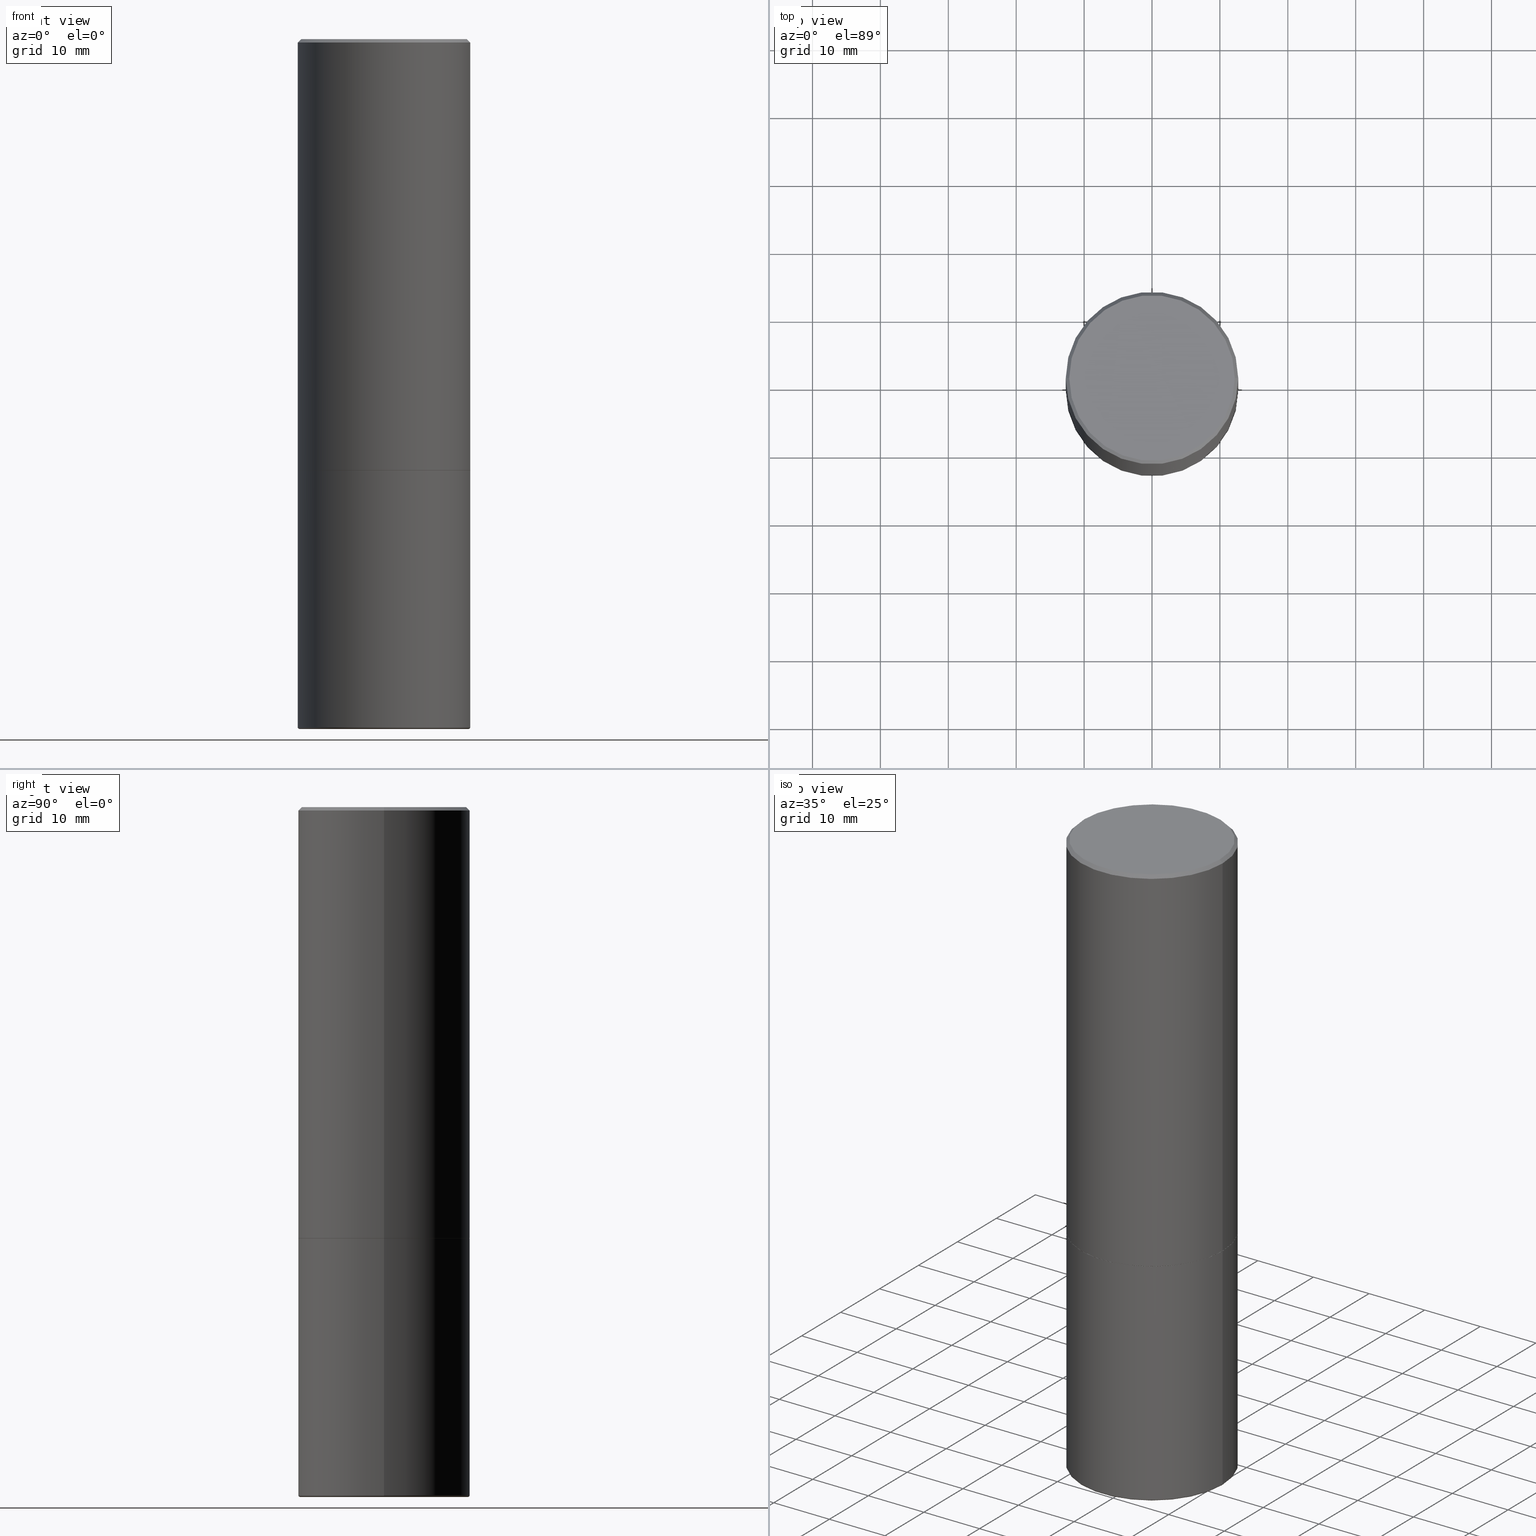
[diagram: canonical four-view strip — front | top / right | iso, engineering-drawing reading convention]
A machine part, canonical four-view strip (front | top / right | iso — engineering-drawing reading convention). The complete STEP part file that produces these views, byte-faithful:
ISO-10303-21;
HEADER;
FILE_DESCRIPTION (( 'STEP AP203' ),
    '1' );
FILE_NAME ('38879.STEP',
    '2024-03-03T19:05:13',
    ( '' ),
    ( '' ),
    'SwSTEP 2.0',
    'SolidWorks 2023',
    '' );
FILE_SCHEMA (( 'CONFIG_CONTROL_DESIGN' ));
ENDSEC;

DATA;
#1 = CARTESIAN_POINT ( 'NONE',  ( -0.5000000000000000000, 3.552713678800500929E-15, -2.459467545127452891E-29 ) ) ;
#2 = CARTESIAN_POINT ( 'NONE',  ( 0.5000000000000000000, -1.742249188082728404E-14, -3.989999999999999769 ) ) ;
#3 = ORIENTED_EDGE ( 'NONE', *, *, #329, .F. ) ;
#4 = CARTESIAN_POINT ( 'NONE',  ( -4.279790798774401163E-45, 6.110406998559833931E-31, 1.750090120941168532E-16 ) ) ;
#5 = LINE ( 'NONE', #1, #148 ) ;
#6 = CARTESIAN_POINT ( 'NONE',  ( 6.113672015462842613E-29, -8.728703347107864943E-15, -2.500000000000000000 ) ) ;
#7 = DIRECTION ( 'NONE',  ( -2.445468806185136597E-29, 3.491481338843145583E-15, 1.000000000000000000 ) ) ;
#8 = EDGE_CURVE ( 'NONE', #214, #286, #413, .T. ) ;
#9 = DIRECTION ( 'NONE',  ( 2.438088387897960049E-29, -3.491481338843145188E-15, -1.000000000000000000 ) ) ;
#10 = CONICAL_SURFACE ( 'NONE', #377, 0.5000000000000001110, 0.7853981633974445042 ) ;
#11 = DIMENSIONAL_EXPONENTS ( 1.000000000000000000, 0.000000000000000000, 0.000000000000000000, 0.000000000000000000, 0.000000000000000000, 0.000000000000000000, 0.000000000000000000 ) ;
#12 = PLANE ( 'NONE',  #216 ) ;
#13 = CALENDAR_DATE ( 2024, 3, 3 ) ;
#14 = ORIENTED_EDGE ( 'NONE', *, *, #225, .F. ) ;
#15 = ORIENTED_EDGE ( 'NONE', *, *, #363, .T. ) ;
#16 = ADVANCED_FACE ( 'NONE', ( #122 ), #259, .T. ) ;
#17 = LINE ( 'NONE', #213, #82 ) ;
#18 = CC_DESIGN_PERSON_AND_ORGANIZATION_ASSIGNMENT ( #46, #178, ( #142 ) ) ;
#19 = ORIENTED_EDGE ( 'NONE', *, *, #8, .T. ) ;
#20 = VERTEX_POINT ( 'NONE', #327 ) ;
#21 =( NAMED_UNIT ( * ) PLANE_ANGLE_UNIT ( ) SI_UNIT ( $, .RADIAN. ) );
#22 = AXIS2_PLACEMENT_3D ( 'NONE', #315, #117, #152 ) ;
#23 = SECURITY_CLASSIFICATION ( '', '', #87 ) ;
#24 = DIRECTION ( 'NONE',  ( -1.000000000000000000, 6.982962677686265922E-15, -4.876176775795935793E-29 ) ) ;
#25 = ORIENTED_EDGE ( 'NONE', *, *, #48, .F. ) ;
#26 = ORIENTED_EDGE ( 'NONE', *, *, #329, .T. ) ;
#27 = CARTESIAN_POINT ( 'NONE',  ( 0.5000000000000001110, -3.491481338843134539E-15, 2.438088387897968457E-29 ) ) ;
#28 = ORIENTED_EDGE ( 'NONE', *, *, #355, .T. ) ;
#29 = DIRECTION ( 'NONE',  ( 1.000000000000000000, -6.982962677686266711E-15, 4.876176775795935793E-29 ) ) ;
#30 = DIRECTION ( 'NONE',  ( -2.445468806185136597E-29, 3.491481338843145583E-15, 1.000000000000000000 ) ) ;
#31 = APPLICATION_CONTEXT ( 'configuration controlled 3d designs of mechanical parts and assemblies' ) ;
#32 = CIRCLE ( 'NONE', #352, 0.5000000000000001110 ) ;
#33 = EDGE_CURVE ( 'NONE', #343, #387, #111, .T. ) ;
#34 = CIRCLE ( 'NONE', #187, 0.5000000000000000000 ) ;
#35 = CARTESIAN_POINT ( 'NONE',  ( 0.5000000000000002220, -1.221669320461215845E-14, -2.499000000000000110 ) ) ;
#36 = DIRECTION ( 'NONE',  ( 2.445468806185136597E-29, -3.491481338843145583E-15, -1.000000000000000000 ) ) ;
#37 = CIRCLE ( 'NONE', #22, 0.4799999999999999267 ) ;
#38 = VECTOR ( 'NONE', #217, 39.37007874015748143 ) ;
#39 = ADVANCED_FACE ( 'NONE', ( #392 ), #399, .F. ) ;
#40 = VECTOR ( 'NONE', #237, 39.37007874015748854 ) ;
#41 = DIRECTION ( 'NONE',  ( 1.000000000000000000, -6.982962677686265922E-15, 0.000000000000000000 ) ) ;
#42 = DATE_TIME_ROLE ( 'creation_date' ) ;
#43 = EDGE_LOOP ( 'NONE', ( #176, #145, #26, #238 ) ) ;
#44 = CIRCLE ( 'NONE', #291, 0.5000000000000000000 ) ;
#45 =( GEOMETRIC_REPRESENTATION_CONTEXT ( 3 ) GLOBAL_UNCERTAINTY_ASSIGNED_CONTEXT ( ( #218 ) ) GLOBAL_UNIT_ASSIGNED_CONTEXT ( ( #164, #21, #154 ) ) REPRESENTATION_CONTEXT ( 'NONE', 'WORKASPACE' ) );
#46 = PERSON_AND_ORGANIZATION ( #62, #304 ) ;
#47 = ADVANCED_FACE ( 'NONE', ( #80 ), #72, .T. ) ;
#48 = EDGE_CURVE ( 'NONE', #387, #240, #110, .T. ) ;
#49 = CARTESIAN_POINT ( 'NONE',  ( 0.5000000000000000000, -3.491481338843133355E-15, 2.438088387897967896E-29 ) ) ;
#50 = CARTESIAN_POINT ( 'NONE',  ( -0.5000000000000002220, -8.448070674724393209E-16, -2.499000000000000110 ) ) ;
#51 = DIRECTION ( 'NONE',  ( -2.445468806185136597E-29, 3.491481338843145583E-15, 1.000000000000000000 ) ) ;
#52 = VERTEX_POINT ( 'NONE', #312 ) ;
#53 = MANIFOLD_SOLID_BREP ( 'Body-Move/Copy2[2]', #402 ) ;
#54 = ORIENTED_EDGE ( 'NONE', *, *, #33, .F. ) ;
#55 = AXIS2_PLACEMENT_3D ( 'NONE', #116, #254, #29 ) ;
#56 = ORIENTED_EDGE ( 'NONE', *, *, #295, .T. ) ;
#57 = PERSON_AND_ORGANIZATION ( #62, #304 ) ;
#58 = CYLINDRICAL_SURFACE ( 'NONE', #223, 0.5000000000000000000 ) ;
#59 = DIRECTION ( 'NONE',  ( 1.000000000000000000, -6.982962677686265922E-15, 0.000000000000000000 ) ) ;
#60 = ADVANCED_FACE ( 'NONE', ( #151 ), #407, .T. ) ;
#61 = VERTEX_POINT ( 'NONE', #371 ) ;
#62 = PERSON ( 'UNSPECIFIED', 'UNSPECIFIED', 'UNSPECIFIED', ('UNSPECIFIED'), ('UNSPECIFIED'), ('UNSPECIFIED') ) ;
#63 = ORIENTED_EDGE ( 'NONE', *, *, #123, .T. ) ;
#64 = DATE_AND_TIME ( #93, #354 ) ;
#65 = EDGE_CURVE ( 'NONE', #286, #214, #274, .T. ) ;
#66 = PERSON_AND_ORGANIZATION ( #62, #304 ) ;
#67 = CLOSED_SHELL ( 'NONE', ( #60, #269, #39, #68, #244, #191 ) ) ;
#68 = ADVANCED_FACE ( 'NONE', ( #344 ), #58, .T. ) ;
#69 = APPROVAL_ROLE ( '' ) ;
#70 = DIRECTION ( 'NONE',  ( 1.000000000000000000, -6.982962677686266711E-15, 4.876176775795935793E-29 ) ) ;
#71 = CARTESIAN_POINT ( 'NONE',  ( 9.757420536678694842E-29, -1.393101054198414910E-14, -3.989999999999999769 ) ) ;
#72 = CONICAL_SURFACE ( 'NONE', #376, 0.4989999999999999991, 0.7853981633976873100 ) ;
#73 = AXIS2_PLACEMENT_3D ( 'NONE', #228, #261, #251 ) ;
#74 = DIRECTION ( 'NONE',  ( -1.000000000000000000, 6.982962677686265922E-15, 0.000000000000000000 ) ) ;
#75 = CARTESIAN_POINT ( 'NONE',  ( 0.4989999999999999991, -1.221320172327331228E-14, -2.500000000000000000 ) ) ;
#76 = ORIENTED_EDGE ( 'NONE', *, *, #77, .F. ) ;
#77 = EDGE_CURVE ( 'NONE', #86, #61, #323, .T. ) ;
#78 = CYLINDRICAL_SURFACE ( 'NONE', #224, 0.5000000000000001110 ) ;
#79 = DIRECTION ( 'NONE',  ( 1.000000000000000000, -6.982962677686267499E-15, 4.876176775795935793E-29 ) ) ;
#80 = FACE_OUTER_BOUND ( 'NONE', #43, .T. ) ;
#81 = PERSON_AND_ORGANIZATION ( #62, #304 ) ;
#82 = VECTOR ( 'NONE', #146, 39.37007874015748143 ) ;
#83 = APPROVAL_PERSON_ORGANIZATION ( #84, #340, #301 ) ;
#84 = PERSON_AND_ORGANIZATION ( #62, #304 ) ;
#85 = COORDINATED_UNIVERSAL_TIME_OFFSET ( 5, 0, .BEHIND. ) ;
#86 = VERTEX_POINT ( 'NONE', #305 ) ;
#87 = SECURITY_CLASSIFICATION_LEVEL ( 'unclassified' ) ;
#88 = CIRCLE ( 'NONE', #263, 0.5000000000000001110 ) ;
#89 = EDGE_LOOP ( 'NONE', ( #101, #56, #284, #280 ) ) ;
#90 = AXIS2_PLACEMENT_3D ( 'NONE', #271, #383, #385 ) ;
#91 = DIRECTION ( 'NONE',  ( -2.445468806185136597E-29, 3.491481338843145583E-15, 1.000000000000000000 ) ) ;
#92 = EDGE_CURVE ( 'NONE', #226, #52, #5, .T. ) ;
#93 = CALENDAR_DATE ( 2024, 3, 3 ) ;
#94 = CC_DESIGN_DATE_AND_TIME_ASSIGNMENT ( #358, #42, ( #221 ) ) ;
#95 = PLANE ( 'NONE',  #177 ) ;
#96 = PERSON_AND_ORGANIZATION_ROLE ( 'creator' ) ;
#97 = CARTESIAN_POINT ( 'NONE',  ( -0.5000000000000001110, 3.552713678800501718E-15, -2.459467545127453732E-29 ) ) ;
#98 = DIRECTION ( 'NONE',  ( -2.445468806185136877E-29, 3.491481338843145188E-15, 1.000000000000000000 ) ) ;
#99 = AXIS2_PLACEMENT_3D ( 'NONE', #379, #318, #215 ) ;
#100 = CC_DESIGN_SECURITY_CLASSIFICATION ( #23, ( #142 ) ) ;
#101 = ORIENTED_EDGE ( 'NONE', *, *, #65, .T. ) ;
#102 = CARTESIAN_POINT ( 'NONE',  ( 6.113672015462842613E-29, -8.728703347107864943E-15, -2.500000000000000000 ) ) ;
#103 = EDGE_CURVE ( 'NONE', #336, #226, #44, .T. ) ;
#104 = ORIENTED_EDGE ( 'NONE', *, *, #185, .T. ) ;
#105 = VERTEX_POINT ( 'NONE', #162 ) ;
#106 = DIRECTION ( 'NONE',  ( -0.7071067811865447972, 2.468850131082228662E-15, -0.7071067811865501263 ) ) ;
#107 = DIRECTION ( 'NONE',  ( 1.000000000000000000, -6.982962677686267499E-15, 4.876176775795935793E-29 ) ) ;
#108 = CARTESIAN_POINT ( 'NONE',  ( -0.4899999999999999911, -1.044935113675965826E-14, -3.989999999999999769 ) ) ;
#109 = CARTESIAN_POINT ( 'NONE',  ( 6.113672015462842613E-29, -8.728703347107864943E-15, -2.500000000000000000 ) ) ;
#110 = LINE ( 'NONE', #174, #345 ) ;
#111 = CIRCLE ( 'NONE', #234, 0.4799999999999999267 ) ;
#112 = EDGE_LOOP ( 'NONE', ( #341, #316, #179, #141 ) ) ;
#113 = CIRCLE ( 'NONE', #357, 0.4989999999999999991 ) ;
#114 = ORIENTED_EDGE ( 'NONE', *, *, #199, .T. ) ;
#115 = DIRECTION ( 'NONE',  ( -2.445468806185136597E-29, 3.491481338843145583E-15, 1.000000000000000000 ) ) ;
#116 = CARTESIAN_POINT ( 'NONE',  ( 0.000000000000000000, 0.000000000000000000, 0.000000000000000000 ) ) ;
#117 = DIRECTION ( 'NONE',  ( -2.445468806185136597E-29, 3.491481338843145583E-15, 1.000000000000000000 ) ) ;
#118 = ORIENTED_EDGE ( 'NONE', *, *, #65, .F. ) ;
#119 = VERTEX_POINT ( 'NONE', #260 ) ;
#120 = COORDINATED_UNIVERSAL_TIME_OFFSET ( 5, 0, .BEHIND. ) ;
#121 = CC_DESIGN_APPROVAL ( #340, ( #142 ) ) ;
#122 = FACE_OUTER_BOUND ( 'NONE', #89, .T. ) ;
#123 = EDGE_CURVE ( 'NONE', #226, #336, #333, .T. ) ;
#124 = CALENDAR_DATE ( 2024, 3, 3 ) ;
#125 = ADVANCED_BREP_SHAPE_REPRESENTATION ( '38879', ( #181, #53, #73 ), #45 ) ;
#126 = AXIS2_PLACEMENT_3D ( 'NONE', #108, #310, #346 ) ;
#127 = FACE_OUTER_BOUND ( 'NONE', #410, .T. ) ;
#128 = LOCAL_TIME ( 14, 5, 13.00000000000000000, #120 ) ;
#129 = PRODUCT_DEFINITION_SHAPE ( 'NONE', 'NONE',  #221 ) ;
#130 = CARTESIAN_POINT ( 'NONE',  ( -0.5000000000000000000, -1.037829686318364817E-14, -3.989999999999999769 ) ) ;
#131 = VECTOR ( 'NONE', #337, 39.37007874015748143 ) ;
#132 = CC_DESIGN_APPROVAL ( #246, ( #221 ) ) ;
#133 = CARTESIAN_POINT ( 'NONE',  ( -0.5000000000000001110, 3.421651712066270452E-15, -0.02000000000000010797 ) ) ;
#134 = EDGE_CURVE ( 'NONE', #61, #86, #168, .T. ) ;
#135 = CARTESIAN_POINT ( 'NONE',  ( 0.4799999999999999267, -3.396558832296482099E-15, 1.750090120941404697E-16 ) ) ;
#136 = ORIENTED_EDGE ( 'NONE', *, *, #355, .F. ) ;
#137 = DIRECTION ( 'NONE',  ( -2.445468806185136597E-29, 3.491481338843145583E-15, 1.000000000000000000 ) ) ;
#138 = CARTESIAN_POINT ( 'NONE',  ( 6.113672015462842613E-29, -8.728703347107864943E-15, -2.500000000000000000 ) ) ;
#139 = DIRECTION ( 'NONE',  ( -2.438088387897960049E-29, 3.491481338843145188E-15, 1.000000000000000000 ) ) ;
#140 = LINE ( 'NONE', #49, #325 ) ;
#141 = ORIENTED_EDGE ( 'NONE', *, *, #170, .F. ) ;
#142 = PRODUCT_DEFINITION_FORMATION_WITH_SPECIFIED_SOURCE ( 'ANY', '', #294, .NOT_KNOWN. ) ;
#143 = ADVANCED_FACE ( 'NONE', ( #202 ), #12, .F. ) ;
#144 = CALENDAR_DATE ( 2024, 3, 3 ) ;
#145 = ORIENTED_EDGE ( 'NONE', *, *, #207, .T. ) ;
#146 = DIRECTION ( 'NONE',  ( -0.7071067811867165487, 7.493145998870964739E-15, 0.7071067811863784858 ) ) ;
#147 = ORIENTED_EDGE ( 'NONE', *, *, #153, .T. ) ;
#148 = VECTOR ( 'NONE', #98, 39.37007874015748143 ) ;
#149 = SHAPE_DEFINITION_REPRESENTATION ( #129, #125 ) ;
#150 = CARTESIAN_POINT ( 'NONE',  ( 6.111226546656657010E-29, -8.725211865769021935E-15, -2.499000000000000110 ) ) ;
#151 = FACE_OUTER_BOUND ( 'NONE', #397, .T. ) ;
#152 = DIRECTION ( 'NONE',  ( 1.000000000000000000, -6.982962677686266711E-15, 4.878011538933550964E-29 ) ) ;
#153 = EDGE_CURVE ( 'NONE', #240, #105, #32, .T. ) ;
#154 =( NAMED_UNIT ( * ) SI_UNIT ( $, .STERADIAN. ) SOLID_ANGLE_UNIT ( ) );
#155 = DIRECTION ( 'NONE',  ( -2.445468806185136597E-29, 3.491481338843145583E-15, 1.000000000000000000 ) ) ;
#156 = ORIENTED_EDGE ( 'NONE', *, *, #153, .F. ) ;
#157 = DIRECTION ( 'NONE',  ( -2.445468806185136597E-29, 3.491481338843145583E-15, 1.000000000000000000 ) ) ;
#158 = FACE_OUTER_BOUND ( 'NONE', #302, .T. ) ;
#159 = AXIS2_PLACEMENT_3D ( 'NONE', #388, #229, #206 ) ;
#160 = LOCAL_TIME ( 14, 5, 13.00000000000000000, #241 ) ;
#161 = APPLICATION_CONTEXT ( 'configuration controlled 3d designs of mechanical parts and assemblies' ) ;
#162 = CARTESIAN_POINT ( 'NONE',  ( 0.5000000000000001110, -3.500078625662629868E-15, -0.02000000000000010797 ) ) ;
#163 = LINE ( 'NONE', #97, #38 ) ;
#164 =( CONVERSION_BASED_UNIT ( 'INCH', #351 ) LENGTH_UNIT ( ) NAMED_UNIT ( #11 ) );
#165 = APPROVAL ( #412, 'UNSPECIFIED' ) ;
#166 = CARTESIAN_POINT ( 'NONE',  ( 9.781875224740546387E-29, -1.396592535537258233E-14, -4.000000000000000000 ) ) ;
#167 = CARTESIAN_POINT ( 'NONE',  ( 9.757420536678694842E-29, -1.393101054198414910E-14, -3.989999999999999769 ) ) ;
#168 = CIRCLE ( 'NONE', #395, 0.4899999999999999911 ) ;
#169 = AXIS2_PLACEMENT_3D ( 'NONE', #353, #30, #319 ) ;
#170 = EDGE_CURVE ( 'NONE', #86, #336, #173, .T. ) ;
#171 = CC_DESIGN_PERSON_AND_ORGANIZATION_ASSIGNMENT ( #415, #96, ( #221 ) ) ;
#172 = DIRECTION ( 'NONE',  ( 0.7071067811867165487, -2.468850131084027659E-15, 0.7071067811863784858 ) ) ;
#173 = CIRCLE ( 'NONE', #268, 0.01000000000000009909 ) ;
#174 = CARTESIAN_POINT ( 'NONE',  ( -0.5000000000000001110, 3.421651712066270452E-15, -0.02000000000000010797 ) ) ;
#175 = APPROVAL_STATUS ( 'not_yet_approved' ) ;
#176 = ORIENTED_EDGE ( 'NONE', *, *, #185, .F. ) ;
#177 = AXIS2_PLACEMENT_3D ( 'NONE', #262, #265, #236 ) ;
#178 = PERSON_AND_ORGANIZATION_ROLE ( 'creator' ) ;
#179 = ORIENTED_EDGE ( 'NONE', *, *, #103, .F. ) ;
#180 = DIRECTION ( 'NONE',  ( 1.000000000000000000, -6.982962677686265922E-15, 0.000000000000000000 ) ) ;
#181 = MANIFOLD_SOLID_BREP ( 'Body-Move/Copy2[1]', #67 ) ;
#182 = EDGE_LOOP ( 'NONE', ( #311, #367 ) ) ;
#183 = DIRECTION ( 'NONE',  ( -2.445468806185136877E-29, 3.491481338843145188E-15, 1.000000000000000000 ) ) ;
#184 = CARTESIAN_POINT ( 'NONE',  ( 0.4899999999999999911, -1.735266225405042074E-14, -3.989999999999999769 ) ) ;
#185 = EDGE_CURVE ( 'NONE', #119, #214, #17, .T. ) ;
#186 = ORIENTED_EDGE ( 'NONE', *, *, #368, .T. ) ;
#187 = AXIS2_PLACEMENT_3D ( 'NONE', #109, #212, #303 ) ;
#188 = PERSON_AND_ORGANIZATION_ROLE ( 'design_supplier' ) ;
#189 = CARTESIAN_POINT ( 'NONE',  ( 4.890937612370299433E-31, -6.982962677686328587E-17, -0.02000000000000010797 ) ) ;
#190 = PERSON_AND_ORGANIZATION ( #62, #304 ) ;
#191 = ADVANCED_FACE ( 'NONE', ( #281 ), #335, .T. ) ;
#192 = EDGE_CURVE ( 'NONE', #286, #105, #278, .T. ) ;
#193 = AXIS2_PLACEMENT_3D ( 'NONE', #400, #408, #255 ) ;
#194 = CARTESIAN_POINT ( 'NONE',  ( 0.5000000000000000000, -1.222018468595099830E-14, -2.500000000000000000 ) ) ;
#195 = APPROVAL_DATE_TIME ( #378, #165 ) ;
#196 = CONICAL_SURFACE ( 'NONE', #347, 0.5000000000000001110, 0.7853981633974445042 ) ;
#197 = CC_DESIGN_PERSON_AND_ORGANIZATION_ASSIGNMENT ( #66, #188, ( #142 ) ) ;
#198 = TOROIDAL_SURFACE ( 'NONE', #414, 0.4899999999999999911, 0.01000000000000009909 ) ;
#199 = EDGE_CURVE ( 'NONE', #387, #343, #37, .T. ) ;
#200 = CC_DESIGN_PERSON_AND_ORGANIZATION_ASSIGNMENT ( #81, #256, ( #294 ) ) ;
#201 = ORIENTED_EDGE ( 'NONE', *, *, #219, .T. ) ;
#202 = FACE_OUTER_BOUND ( 'NONE', #182, .T. ) ;
#203 = CARTESIAN_POINT ( 'NONE',  ( 6.113672015462842613E-29, -8.728703347107864943E-15, -2.500000000000000000 ) ) ;
#204 = CARTESIAN_POINT ( 'NONE',  ( 9.781875224740546387E-29, -1.396592535537258233E-14, -4.000000000000000000 ) ) ;
#205 = ORIENTED_EDGE ( 'NONE', *, *, #192, .T. ) ;
#206 = DIRECTION ( 'NONE',  ( 1.000000000000000000, -6.982962677686266711E-15, 0.000000000000000000 ) ) ;
#207 = EDGE_CURVE ( 'NONE', #119, #20, #365, .T. ) ;
#208 = EDGE_LOOP ( 'NONE', ( #338, #19, #205, #156 ) ) ;
#209 = DIRECTION ( 'NONE',  ( 1.000000000000000000, -6.982962677686266711E-15, 0.000000000000000000 ) ) ;
#210 = DIRECTION ( 'NONE',  ( -6.982962677686266711E-15, -1.000000000000000000, 3.491481338843145583E-15 ) ) ;
#211 = CALENDAR_DATE ( 2024, 3, 3 ) ;
#212 = DIRECTION ( 'NONE',  ( -2.445468806185136597E-29, 3.491481338843145583E-15, 1.000000000000000000 ) ) ;
#213 = CARTESIAN_POINT ( 'NONE',  ( -0.4989999999999999991, -5.183095095664965021E-15, -2.500000000000000000 ) ) ;
#214 = VERTEX_POINT ( 'NONE', #50 ) ;
#215 = DIRECTION ( 'NONE',  ( 1.000000000000000000, -6.982962677686269866E-15, 0.000000000000000000 ) ) ;
#216 = AXIS2_PLACEMENT_3D ( 'NONE', #102, #139, #409 ) ;
#217 = DIRECTION ( 'NONE',  ( -2.445468806185136877E-29, 3.491481338843145188E-15, 1.000000000000000000 ) ) ;
#218 = UNCERTAINTY_MEASURE_WITH_UNIT (LENGTH_MEASURE( 1.000000000000000082E-05 ), #164, 'distance_accuracy_value', 'NONE');
#219 = EDGE_CURVE ( 'NONE', #105, #240, #88, .T. ) ;
#220 = APPROVAL_PERSON_ORGANIZATION ( #190, #165, #69 ) ;
#221 = PRODUCT_DEFINITION ( 'UNKNOWN', '', #142, #384 ) ;
#222 = DIRECTION ( 'NONE',  ( -2.445468806185136597E-29, 3.491481338843145583E-15, 1.000000000000000000 ) ) ;
#223 = AXIS2_PLACEMENT_3D ( 'NONE', #375, #91, #70 ) ;
#224 = AXIS2_PLACEMENT_3D ( 'NONE', #328, #309, #107 ) ;
#225 = EDGE_CURVE ( 'NONE', #61, #226, #313, .T. ) ;
#226 = VERTEX_POINT ( 'NONE', #130 ) ;
#227 = DATE_AND_TIME ( #13, #292 ) ;
#228 = CARTESIAN_POINT ( 'NONE',  ( 0.000000000000000000, 0.000000000000000000, 0.000000000000000000 ) ) ;
#229 = DIRECTION ( 'NONE',  ( -2.445468806185136597E-29, 3.491481338843145583E-15, 1.000000000000000000 ) ) ;
#230 = DIRECTION ( 'NONE',  ( -2.445468806185136597E-29, 3.491481338843145583E-15, 1.000000000000000000 ) ) ;
#231 = CC_DESIGN_DATE_AND_TIME_ASSIGNMENT ( #64, #258, ( #23 ) ) ;
#232 = COORDINATED_UNIVERSAL_TIME_OFFSET ( 5, 0, .BEHIND. ) ;
#233 = ORIENTED_EDGE ( 'NONE', *, *, #279, .F. ) ;
#234 = AXIS2_PLACEMENT_3D ( 'NONE', #4, #330, #276 ) ;
#235 = CIRCLE ( 'NONE', #169, 0.5000000000000000000 ) ;
#236 = DIRECTION ( 'NONE',  ( -1.000000000000000000, 6.982962677686265922E-15, -4.876176775795935793E-29 ) ) ;
#237 = DIRECTION ( 'NONE',  ( 0.7071067811865447972, -7.319954787623245001E-15, -0.7071067811865501263 ) ) ;
#238 = ORIENTED_EDGE ( 'NONE', *, *, #8, .F. ) ;
#239 = ADVANCED_FACE ( 'NONE', ( #158 ), #196, .T. ) ;
#240 = VERTEX_POINT ( 'NONE', #133 ) ;
#241 = COORDINATED_UNIVERSAL_TIME_OFFSET ( 5, 0, .BEHIND. ) ;
#242 = DIRECTION ( 'NONE',  ( 1.000000000000000000, -6.982962677686266711E-15, 0.000000000000000000 ) ) ;
#243 = DIRECTION ( 'NONE',  ( -1.000000000000000000, 6.982962677686265922E-15, -4.876176775795935793E-29 ) ) ;
#244 = ADVANCED_FACE ( 'NONE', ( #389 ), #248, .T. ) ;
#245 = ORIENTED_EDGE ( 'NONE', *, *, #103, .T. ) ;
#246 = APPROVAL ( #374, 'UNSPECIFIED' ) ;
#247 = DIRECTION ( 'NONE',  ( 2.438088387897960049E-29, -3.491481338843145188E-15, -1.000000000000000000 ) ) ;
#248 = TOROIDAL_SURFACE ( 'NONE', #334, 0.4899999999999999911, 0.01000000000000009909 ) ;
#249 = ORIENTED_EDGE ( 'NONE', *, *, #92, .F. ) ;
#250 = ORIENTED_EDGE ( 'NONE', *, *, #398, .T. ) ;
#251 = DIRECTION ( 'NONE',  ( 1.000000000000000000, 0.000000000000000000, 0.000000000000000000 ) ) ;
#252 = ORIENTED_EDGE ( 'NONE', *, *, #170, .T. ) ;
#253 =( LENGTH_UNIT ( ) NAMED_UNIT ( * ) SI_UNIT ( $, .METRE. ) );
#254 = DIRECTION ( 'NONE',  ( -2.445468806185136597E-29, 3.491481338843145583E-15, 1.000000000000000000 ) ) ;
#255 = DIRECTION ( 'NONE',  ( 1.000000000000000000, -6.982962677686266711E-15, 0.000000000000000000 ) ) ;
#256 = PERSON_AND_ORGANIZATION_ROLE ( 'design_owner' ) ;
#257 = ORIENTED_EDGE ( 'NONE', *, *, #123, .F. ) ;
#258 = DATE_TIME_ROLE ( 'classification_date' ) ;
#259 = CYLINDRICAL_SURFACE ( 'NONE', #283, 0.5000000000000001110 ) ;
#260 = CARTESIAN_POINT ( 'NONE',  ( -0.4989999999999999991, -5.177796641316741831E-15, -2.500000000000000000 ) ) ;
#261 = DIRECTION ( 'NONE',  ( 0.000000000000000000, 0.000000000000000000, 1.000000000000000000 ) ) ;
#262 = CARTESIAN_POINT ( 'NONE',  ( 3.351822085289407153E-15, 0.4799999999999999267, -1.588406536597651338E-15 ) ) ;
#263 = AXIS2_PLACEMENT_3D ( 'NONE', #189, #155, #180 ) ;
#264 = VECTOR ( 'NONE', #172, 39.37007874015748143 ) ;
#265 = DIRECTION ( 'NONE',  ( 2.438088387897960049E-29, -3.491481338843145188E-15, -1.000000000000000000 ) ) ;
#266 = ADVANCED_FACE ( 'NONE', ( #321 ), #95, .F. ) ;
#267 = DIRECTION ( 'NONE',  ( 1.000000000000000000, -6.982962677686266711E-15, 0.000000000000000000 ) ) ;
#268 = AXIS2_PLACEMENT_3D ( 'NONE', #184, #210, #285 ) ;
#269 = ADVANCED_FACE ( 'NONE', ( #270 ), #198, .T. ) ;
#270 = FACE_OUTER_BOUND ( 'NONE', #112, .T. ) ;
#271 = CARTESIAN_POINT ( 'NONE',  ( 6.113672015462842613E-29, -8.728703347107864943E-15, -2.500000000000000000 ) ) ;
#272 = ADVANCED_FACE ( 'NONE', ( #342 ), #10, .T. ) ;
#273 = CARTESIAN_POINT ( 'NONE',  ( 0.5000000000000001110, -3.500078625662629868E-15, -0.02000000000000010797 ) ) ;
#274 = CIRCLE ( 'NONE', #99, 0.5000000000000002220 ) ;
#275 = VERTEX_POINT ( 'NONE', #194 ) ;
#276 = DIRECTION ( 'NONE',  ( 1.000000000000000000, -6.982962677686266711E-15, 4.878011538933550964E-29 ) ) ;
#277 = FACE_OUTER_BOUND ( 'NONE', #208, .T. ) ;
#278 = LINE ( 'NONE', #27, #131 ) ;
#279 = EDGE_CURVE ( 'NONE', #275, #52, #235, .T. ) ;
#280 = ORIENTED_EDGE ( 'NONE', *, *, #192, .F. ) ;
#281 = FACE_OUTER_BOUND ( 'NONE', #282, .T. ) ;
#282 = EDGE_LOOP ( 'NONE', ( #76, #306 ) ) ;
#283 = AXIS2_PLACEMENT_3D ( 'NONE', #350, #51, #79 ) ;
#284 = ORIENTED_EDGE ( 'NONE', *, *, #219, .F. ) ;
#285 = DIRECTION ( 'NONE',  ( 1.000000000000000000, -6.982962677686262766E-15, 0.000000000000000000 ) ) ;
#286 = VERTEX_POINT ( 'NONE', #35 ) ;
#287 = CARTESIAN_POINT ( 'NONE',  ( 4.890937612370299433E-31, -6.982962677686328587E-17, -0.02000000000000010797 ) ) ;
#288 = PERSON_AND_ORGANIZATION_ROLE ( 'classification_officer' ) ;
#289 = APPROVAL_ROLE ( '' ) ;
#290 = DIRECTION ( 'NONE',  ( 1.000000000000000000, -6.982962677686269866E-15, 0.000000000000000000 ) ) ;
#291 = AXIS2_PLACEMENT_3D ( 'NONE', #167, #222, #267 ) ;
#292 = LOCAL_TIME ( 14, 5, 13.00000000000000000, #85 ) ;
#293 = PRODUCT_RELATED_PRODUCT_CATEGORY ( 'detail', '', ( #294 ) ) ;
#294 = PRODUCT ( '38879', '38879', '', ( #362 ) ) ;
#295 = EDGE_CURVE ( 'NONE', #214, #240, #163, .T. ) ;
#296 = AXIS2_PLACEMENT_3D ( 'NONE', #166, #299, #41 ) ;
#297 = CONICAL_SURFACE ( 'NONE', #90, 0.4989999999999999991, 0.7853981633976873100 ) ;
#298 = AXIS2_PLACEMENT_3D ( 'NONE', #150, #115, #290 ) ;
#299 = DIRECTION ( 'NONE',  ( -2.445468806185136597E-29, 3.491481338843145583E-15, 1.000000000000000000 ) ) ;
#300 = DIRECTION ( 'NONE',  ( 1.000000000000000000, -6.982962677686265922E-15, 4.883557194083112340E-29 ) ) ;
#301 = APPROVAL_ROLE ( '' ) ;
#302 = EDGE_LOOP ( 'NONE', ( #54, #186, #201, #25 ) ) ;
#303 = DIRECTION ( 'NONE',  ( 1.000000000000000000, -6.982962677686269077E-15, 0.000000000000000000 ) ) ;
#304 = ORGANIZATION ( 'UNSPECIFIED', 'UNSPECIFIED', '' ) ;
#305 = CARTESIAN_POINT ( 'NONE',  ( 0.4899999999999999911, -1.738757706743885081E-14, -4.000000000000000000 ) ) ;
#306 = ORIENTED_EDGE ( 'NONE', *, *, #134, .F. ) ;
#307 = ADVANCED_FACE ( 'NONE', ( #127 ), #297, .T. ) ;
#308 = APPROVAL_DATE_TIME ( #361, #340 ) ;
#309 = DIRECTION ( 'NONE',  ( -2.445468806185136597E-29, 3.491481338843145583E-15, 1.000000000000000000 ) ) ;
#310 = DIRECTION ( 'NONE',  ( 7.105427357601001859E-15, 1.000000000000000000, -3.491481338843145583E-15 ) ) ;
#311 = ORIENTED_EDGE ( 'NONE', *, *, #398, .F. ) ;
#312 = CARTESIAN_POINT ( 'NONE',  ( -0.5000000000000000000, -7.777143265745505305E-15, -2.500000000000000000 ) ) ;
#313 = CIRCLE ( 'NONE', #126, 0.01000000000000009909 ) ;
#314 = EDGE_LOOP ( 'NONE', ( #249, #63, #15, #136 ) ) ;
#315 = CARTESIAN_POINT ( 'NONE',  ( -4.279790798774401163E-45, 6.110406998559833931E-31, 1.750090120941168532E-16 ) ) ;
#316 = ORIENTED_EDGE ( 'NONE', *, *, #225, .T. ) ;
#317 = APPLICATION_PROTOCOL_DEFINITION ( 'international standard', 'config_control_design', 1994, #161 ) ;
#318 = DIRECTION ( 'NONE',  ( -2.445468806185136597E-29, 3.491481338843145583E-15, 1.000000000000000000 ) ) ;
#319 = DIRECTION ( 'NONE',  ( 1.000000000000000000, -6.982962677686269077E-15, 0.000000000000000000 ) ) ;
#320 = CARTESIAN_POINT ( 'NONE',  ( 9.757420536678694842E-29, -1.393101054198414910E-14, -3.989999999999999769 ) ) ;
#321 = FACE_OUTER_BOUND ( 'NONE', #386, .T. ) ;
#322 = LINE ( 'NONE', #75, #264 ) ;
#323 = CIRCLE ( 'NONE', #296, 0.4899999999999999911 ) ;
#324 = APPROVAL_DATE_TIME ( #227, #246 ) ;
#325 = VECTOR ( 'NONE', #183, 39.37007874015748143 ) ;
#326 = ORIENTED_EDGE ( 'NONE', *, *, #92, .T. ) ;
#327 = CARTESIAN_POINT ( 'NONE',  ( 0.4989999999999999991, -1.221320172327331228E-14, -2.500000000000000000 ) ) ;
#328 = CARTESIAN_POINT ( 'NONE',  ( 0.000000000000000000, 0.000000000000000000, 0.000000000000000000 ) ) ;
#329 = EDGE_CURVE ( 'NONE', #20, #286, #322, .T. ) ;
#330 = DIRECTION ( 'NONE',  ( -2.445468806185136597E-29, 3.491481338843145583E-15, 1.000000000000000000 ) ) ;
#331 = DIRECTION ( 'NONE',  ( -2.445468806185136597E-29, 3.491481338843145583E-15, 1.000000000000000000 ) ) ;
#332 = ORIENTED_EDGE ( 'NONE', *, *, #279, .T. ) ;
#333 = CIRCLE ( 'NONE', #159, 0.5000000000000000000 ) ;
#334 = AXIS2_PLACEMENT_3D ( 'NONE', #71, #230, #300 ) ;
#335 = PLANE ( 'NONE',  #380 ) ;
#336 = VERTEX_POINT ( 'NONE', #2 ) ;
#337 = DIRECTION ( 'NONE',  ( -2.445468806185136877E-29, 3.491481338843145188E-15, 1.000000000000000000 ) ) ;
#338 = ORIENTED_EDGE ( 'NONE', *, *, #295, .F. ) ;
#339 = CARTESIAN_POINT ( 'NONE',  ( 9.781875224740546387E-29, -1.396592535537258233E-14, -4.000000000000000000 ) ) ;
#340 = APPROVAL ( #175, 'UNSPECIFIED' ) ;
#341 = ORIENTED_EDGE ( 'NONE', *, *, #77, .T. ) ;
#342 = FACE_OUTER_BOUND ( 'NONE', #373, .T. ) ;
#343 = VERTEX_POINT ( 'NONE', #135 ) ;
#344 = FACE_OUTER_BOUND ( 'NONE', #314, .T. ) ;
#345 = VECTOR ( 'NONE', #106, 39.37007874015748854 ) ;
#346 = DIRECTION ( 'NONE',  ( -1.000000000000000000, 7.105427357601049190E-15, 0.000000000000000000 ) ) ;
#347 = AXIS2_PLACEMENT_3D ( 'NONE', #381, #36, #74 ) ;
#348 = COORDINATED_UNIVERSAL_TIME_OFFSET ( 5, 0, .BEHIND. ) ;
#349 = ORIENTED_EDGE ( 'NONE', *, *, #48, .T. ) ;
#350 = CARTESIAN_POINT ( 'NONE',  ( 0.000000000000000000, 0.000000000000000000, 0.000000000000000000 ) ) ;
#351 = LENGTH_MEASURE_WITH_UNIT ( LENGTH_MEASURE( 0.02539999999999999897 ), #253 );
#352 = AXIS2_PLACEMENT_3D ( 'NONE', #404, #369, #59 ) ;
#353 = CARTESIAN_POINT ( 'NONE',  ( 6.113672015462842613E-29, -8.728703347107864943E-15, -2.500000000000000000 ) ) ;
#354 = LOCAL_TIME ( 14, 5, 13.00000000000000000, #348 ) ;
#355 = EDGE_CURVE ( 'NONE', #52, #275, #34, .T. ) ;
#356 = CC_DESIGN_PERSON_AND_ORGANIZATION_ASSIGNMENT ( #57, #288, ( #23 ) ) ;
#357 = AXIS2_PLACEMENT_3D ( 'NONE', #6, #137, #242 ) ;
#358 = DATE_AND_TIME ( #144, #396 ) ;
#359 = CARTESIAN_POINT ( 'NONE',  ( -0.4799999999999999267, 3.386736898677839197E-15, 1.750090120940932860E-16 ) ) ;
#360 = APPLICATION_PROTOCOL_DEFINITION ( 'international standard', 'config_control_design', 1994, #31 ) ;
#361 = DATE_AND_TIME ( #211, #160 ) ;
#362 = MECHANICAL_CONTEXT ( 'NONE', #31, 'mechanical' ) ;
#363 = EDGE_CURVE ( 'NONE', #336, #275, #140, .T. ) ;
#364 = EDGE_LOOP ( 'NONE', ( #14, #370, #252, #257 ) ) ;
#365 = CIRCLE ( 'NONE', #193, 0.4989999999999999991 ) ;
#366 = CC_DESIGN_APPROVAL ( #165, ( #23 ) ) ;
#367 = ORIENTED_EDGE ( 'NONE', *, *, #207, .F. ) ;
#368 = EDGE_CURVE ( 'NONE', #343, #105, #394, .T. ) ;
#369 = DIRECTION ( 'NONE',  ( -2.445468806185136597E-29, 3.491481338843145583E-15, 1.000000000000000000 ) ) ;
#370 = ORIENTED_EDGE ( 'NONE', *, *, #134, .T. ) ;
#371 = CARTESIAN_POINT ( 'NONE',  ( -0.4899999999999999911, -1.043128140666586904E-14, -4.000000000000000000 ) ) ;
#372 = ORIENTED_EDGE ( 'NONE', *, *, #363, .F. ) ;
#373 = EDGE_LOOP ( 'NONE', ( #401, #411, #349, #147 ) ) ;
#374 = APPROVAL_STATUS ( 'not_yet_approved' ) ;
#375 = CARTESIAN_POINT ( 'NONE',  ( 0.000000000000000000, 0.000000000000000000, 0.000000000000000000 ) ) ;
#376 = AXIS2_PLACEMENT_3D ( 'NONE', #203, #7, #209 ) ;
#377 = AXIS2_PLACEMENT_3D ( 'NONE', #287, #418, #416 ) ;
#378 = DATE_AND_TIME ( #124, #128 ) ;
#379 = CARTESIAN_POINT ( 'NONE',  ( 6.111226546656657010E-29, -8.725211865769021935E-15, -2.499000000000000110 ) ) ;
#380 = AXIS2_PLACEMENT_3D ( 'NONE', #339, #247, #24 ) ;
#381 = CARTESIAN_POINT ( 'NONE',  ( 4.890937612370299433E-31, -6.982962677686328587E-17, -0.02000000000000010797 ) ) ;
#382 = DIRECTION ( 'NONE',  ( 1.000000000000000000, -6.982962677686265922E-15, 4.883557194083112340E-29 ) ) ;
#383 = DIRECTION ( 'NONE',  ( -2.445468806185136597E-29, 3.491481338843145583E-15, 1.000000000000000000 ) ) ;
#384 = DESIGN_CONTEXT ( 'detailed design', #161, 'design' ) ;
#385 = DIRECTION ( 'NONE',  ( 1.000000000000000000, -6.982962677686266711E-15, 0.000000000000000000 ) ) ;
#386 = EDGE_LOOP ( 'NONE', ( #114, #391 ) ) ;
#387 = VERTEX_POINT ( 'NONE', #359 ) ;
#388 = CARTESIAN_POINT ( 'NONE',  ( 9.757420536678694842E-29, -1.393101054198414910E-14, -3.989999999999999769 ) ) ;
#389 = FACE_OUTER_BOUND ( 'NONE', #364, .T. ) ;
#390 = ADVANCED_FACE ( 'NONE', ( #277 ), #78, .T. ) ;
#391 = ORIENTED_EDGE ( 'NONE', *, *, #33, .T. ) ;
#392 = FACE_OUTER_BOUND ( 'NONE', #405, .T. ) ;
#393 = DIRECTION ( 'NONE',  ( 1.000000000000000000, -6.982962677686265922E-15, 0.000000000000000000 ) ) ;
#394 = LINE ( 'NONE', #273, #40 ) ;
#395 = AXIS2_PLACEMENT_3D ( 'NONE', #204, #331, #393 ) ;
#396 = LOCAL_TIME ( 14, 5, 13.00000000000000000, #232 ) ;
#397 = EDGE_LOOP ( 'NONE', ( #245, #326, #233, #372 ) ) ;
#398 = EDGE_CURVE ( 'NONE', #20, #119, #113, .T. ) ;
#399 = PLANE ( 'NONE',  #417 ) ;
#400 = CARTESIAN_POINT ( 'NONE',  ( 6.113672015462842613E-29, -8.728703347107864943E-15, -2.500000000000000000 ) ) ;
#401 = ORIENTED_EDGE ( 'NONE', *, *, #368, .F. ) ;
#402 = CLOSED_SHELL ( 'NONE', ( #307, #16, #239, #272, #390, #47, #143, #266 ) ) ;
#403 = APPROVAL_PERSON_ORGANIZATION ( #406, #246, #289 ) ;
#404 = CARTESIAN_POINT ( 'NONE',  ( 4.890937612370299433E-31, -6.982962677686328587E-17, -0.02000000000000010797 ) ) ;
#405 = EDGE_LOOP ( 'NONE', ( #332, #28 ) ) ;
#406 = PERSON_AND_ORGANIZATION ( #62, #304 ) ;
#407 = CYLINDRICAL_SURFACE ( 'NONE', #55, 0.5000000000000000000 ) ;
#408 = DIRECTION ( 'NONE',  ( -2.445468806185136597E-29, 3.491481338843145583E-15, 1.000000000000000000 ) ) ;
#409 = DIRECTION ( 'NONE',  ( 1.000000000000000000, -6.982962677686265922E-15, 4.876176775795935793E-29 ) ) ;
#410 = EDGE_LOOP ( 'NONE', ( #250, #104, #118, #3 ) ) ;
#411 = ORIENTED_EDGE ( 'NONE', *, *, #199, .F. ) ;
#412 = APPROVAL_STATUS ( 'not_yet_approved' ) ;
#413 = CIRCLE ( 'NONE', #298, 0.5000000000000002220 ) ;
#414 = AXIS2_PLACEMENT_3D ( 'NONE', #320, #157, #382 ) ;
#415 = PERSON_AND_ORGANIZATION ( #62, #304 ) ;
#416 = DIRECTION ( 'NONE',  ( -1.000000000000000000, 6.982962677686265922E-15, 0.000000000000000000 ) ) ;
#417 = AXIS2_PLACEMENT_3D ( 'NONE', #138, #9, #243 ) ;
#418 = DIRECTION ( 'NONE',  ( 2.445468806185136597E-29, -3.491481338843145583E-15, -1.000000000000000000 ) ) ;
ENDSEC;
END-ISO-10303-21;
